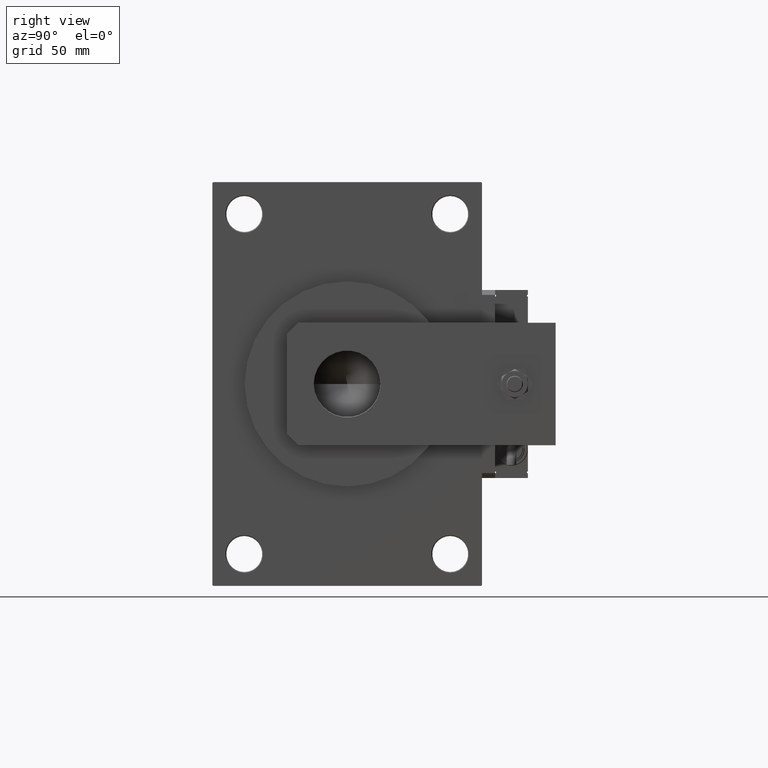
[diagram: clean part render]
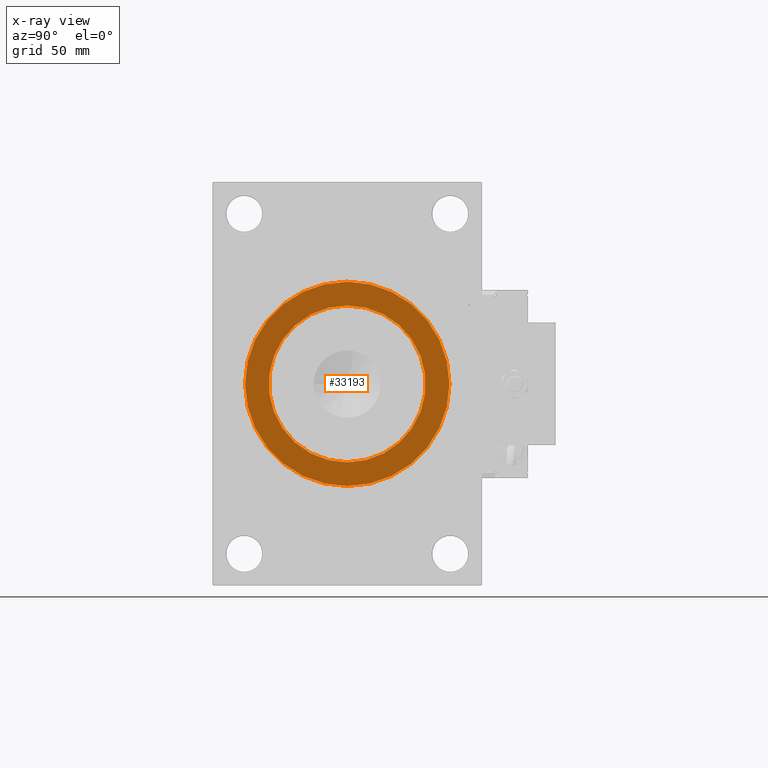
[diagram: x-ray — body ghosted, one internal face saturated and labeled with its STEP entity id]
A machine part, right view, then the same camera in x-ray: the body is ghosted and one INTERNAL B-rep face — a face not visible from any outside direction — is saturated and labeled: STEP entity #33193.
In plain terms, the highlighted planar face has unit normal (-1, 0, 0).
Its self-contained STEP definition (entity closure, byte-faithful):
#546 = DIRECTION ( 'NONE',  ( 0.000000000000000000, 0.000000000000000000, 1.000000000000000000 ) ) ;
#1812 = EDGE_CURVE ( 'NONE', #36765, #14527, #45095, .T. ) ;
#2451 = CARTESIAN_POINT ( 'NONE',  ( 139.0000000000000000, 5.878304635907296578E-15, 48.00000000000000711 ) ) ;
#3092 = DIRECTION ( 'NONE',  ( 1.000000000000000000, 0.000000000000000000, 0.000000000000000000 ) ) ;
#4587 = CARTESIAN_POINT ( 'NONE',  ( 139.0000000000000000, 0.000000000000000000, 0.000000000000000000 ) ) ;
#8212 = AXIS2_PLACEMENT_3D ( 'NONE', #4587, #37507, #546 ) ;
#9195 = FACE_OUTER_BOUND ( 'NONE', #45675, .T. ) ;
#11963 = CARTESIAN_POINT ( 'NONE',  ( 139.0000000000000000, -2.602085213965210642E-15, 0.000000000000000000 ) ) ;
#12053 = CARTESIAN_POINT ( 'NONE',  ( 139.0000000000000000, 5.051957280705745584E-15, -62.50000000000000000 ) ) ;
#13013 = ORIENTED_EDGE ( 'NONE', *, *, #47053, .F. ) ;
#14527 = VERTEX_POINT ( 'NONE', #24524 ) ;
#15737 = ORIENTED_EDGE ( 'NONE', *, *, #1812, .F. ) ;
#16398 = CARTESIAN_POINT ( 'NONE',  ( 139.0000000000000000, 0.000000000000000000, 0.000000000000000000 ) ) ;
#17731 = DIRECTION ( 'NONE',  ( 0.000000000000000000, 0.000000000000000000, -1.000000000000000000 ) ) ;
#21096 = DIRECTION ( 'NONE',  ( -1.000000000000000000, 0.000000000000000000, -0.000000000000000000 ) ) ;
#23320 = DIRECTION ( 'NONE',  ( 0.000000000000000000, 0.000000000000000000, -1.000000000000000000 ) ) ;
#24158 = EDGE_CURVE ( 'NONE', #31377, #46497, #35788, .T. ) ;
#24524 = CARTESIAN_POINT ( 'NONE',  ( 139.0000000000000000, -2.602085213965210642E-15, 62.50000000000000000 ) ) ;
#25021 = DIRECTION ( 'NONE',  ( 0.000000000000000000, 0.000000000000000000, 1.000000000000000000 ) ) ;
#25332 = EDGE_CURVE ( 'NONE', #14527, #36765, #52232, .T. ) ;
#25725 = AXIS2_PLACEMENT_3D ( 'NONE', #25917, #21096, #37558 ) ;
#25917 = CARTESIAN_POINT ( 'NONE',  ( 139.0000000000000000, 0.000000000000000000, 0.000000000000000000 ) ) ;
#26259 = ORIENTED_EDGE ( 'NONE', *, *, #24158, .F. ) ;
#28769 = CIRCLE ( 'NONE', #40862, 48.00000000000000711 ) ;
#29919 = EDGE_LOOP ( 'NONE', ( #26259, #13013 ) ) ;
#31377 = VERTEX_POINT ( 'NONE', #34454 ) ;
#33193 = ADVANCED_FACE ( 'NONE', ( #46210, #9195 ), #42422, .T. ) ;
#33248 = AXIS2_PLACEMENT_3D ( 'NONE', #51746, #46903, #17731 ) ;
#34454 = CARTESIAN_POINT ( 'NONE',  ( 139.0000000000000000, 0.000000000000000000, -48.00000000000000711 ) ) ;
#35788 = CIRCLE ( 'NONE', #8212, 48.00000000000000711 ) ;
#36765 = VERTEX_POINT ( 'NONE', #12053 ) ;
#37180 = DIRECTION ( 'NONE',  ( -1.000000000000000000, 0.000000000000000000, -0.000000000000000000 ) ) ;
#37507 = DIRECTION ( 'NONE',  ( -1.000000000000000000, 0.000000000000000000, -0.000000000000000000 ) ) ;
#37558 = DIRECTION ( 'NONE',  ( -0.000000000000000000, 0.000000000000000000, 1.000000000000000000 ) ) ;
#40862 = AXIS2_PLACEMENT_3D ( 'NONE', #16398, #37180, #25021 ) ;
#41571 = ORIENTED_EDGE ( 'NONE', *, *, #25332, .F. ) ;
#42422 = PLANE ( 'NONE',  #25725 ) ;
#45095 = CIRCLE ( 'NONE', #49425, 62.50000000000000000 ) ;
#45675 = EDGE_LOOP ( 'NONE', ( #41571, #15737 ) ) ;
#46210 = FACE_BOUND ( 'NONE', #29919, .T. ) ;
#46497 = VERTEX_POINT ( 'NONE', #2451 ) ;
#46903 = DIRECTION ( 'NONE',  ( 1.000000000000000000, 0.000000000000000000, 0.000000000000000000 ) ) ;
#47053 = EDGE_CURVE ( 'NONE', #46497, #31377, #28769, .T. ) ;
#49425 = AXIS2_PLACEMENT_3D ( 'NONE', #11963, #3092, #23320 ) ;
#51746 = CARTESIAN_POINT ( 'NONE',  ( 139.0000000000000000, -2.602085213965210642E-15, 0.000000000000000000 ) ) ;
#52232 = CIRCLE ( 'NONE', #33248, 62.50000000000000000 ) ;